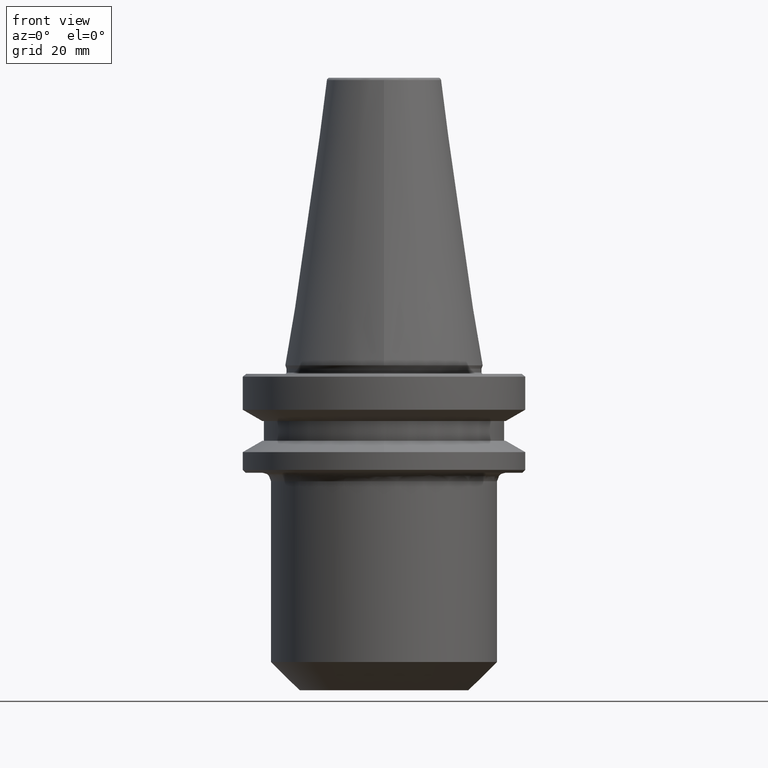
[diagram: clean part render]
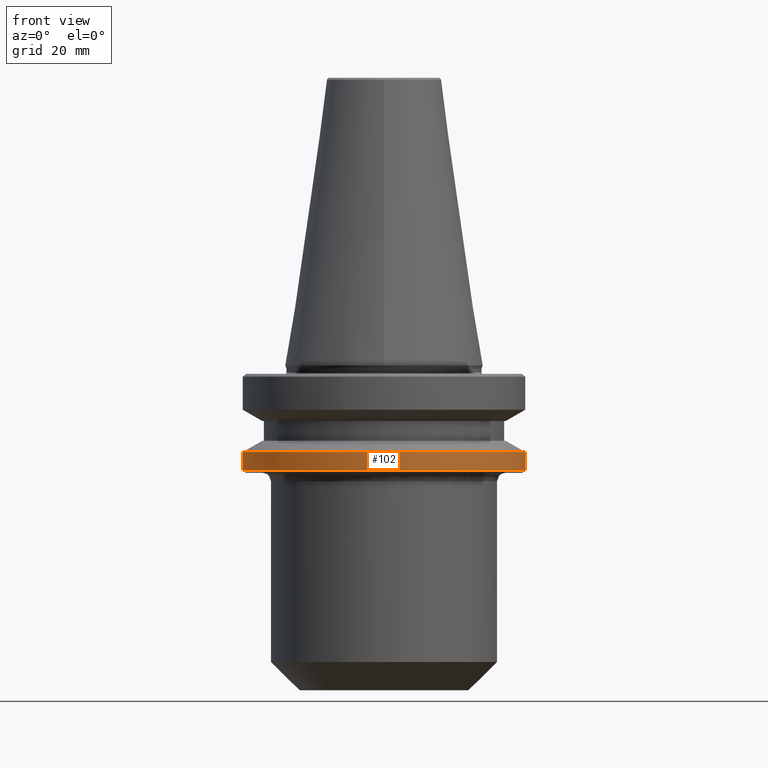
[diagram: same view with one face highlighted and labeled with its STEP entity id]
A machine part, front view. The second image highlights one B-rep face of the part: STEP entity #102.
In plain terms, the highlighted cylindrical surface (partial cylindrical patch) has radius 50 mm, axis along (0, 0, 1).
Its self-contained STEP definition (entity closure, byte-faithful):
#10 = CARTESIAN_POINT ( 'NONE',  ( -50.00000000000000000, 6.123233995736766100E-015, 124.5046326327850600 ) ) ;
#11 = DIRECTION ( 'NONE',  ( 0.0000000000000000000, 0.0000000000000000000, 1.000000000000000000 ) ) ;
#17 = AXIS2_PLACEMENT_3D ( 'NONE', #78, #883, #212 ) ;
#78 = CARTESIAN_POINT ( 'NONE',  ( 0.0000000000000000000, 0.0000000000000000000, -37.00000000000002100 ) ) ;
#102 = ADVANCED_FACE ( 'NONE', ( #407 ), #1247, .T. ) ;
#107 = LINE ( 'NONE', #978, #133 ) ;
#133 = VECTOR ( 'NONE', #977, 1000.000000000000000 ) ;
#134 = AXIS2_PLACEMENT_3D ( 'NONE', #943, #942, #1357 ) ;
#156 = EDGE_LOOP ( 'NONE', ( #1161, #1094, #1022, #658, #967 ) ) ;
#159 = VECTOR ( 'NONE', #11, 1000.000000000000000 ) ;
#212 = DIRECTION ( 'NONE',  ( 1.000000000000000000, 0.0000000000000000000, 0.0000000000000000000 ) ) ;
#271 = AXIS2_PLACEMENT_3D ( 'NONE', #1340, #1384, #1301 ) ;
#316 = CIRCLE ( 'NONE', #134, 50.00000000000000000 ) ;
#329 = VERTEX_POINT ( 'NONE', #1203 ) ;
#370 = EDGE_CURVE ( 'NONE', #478, #950, #316, .T. ) ;
#374 = CARTESIAN_POINT ( 'NONE',  ( 50.00000000000000000, 0.0000000000000000000, -30.69977999677324500 ) ) ;
#407 = FACE_OUTER_BOUND ( 'NONE', #156, .T. ) ;
#462 = CARTESIAN_POINT ( 'NONE',  ( 50.00000000000000000, 0.0000000000000000000, -37.00000000000002100 ) ) ;
#478 = VERTEX_POINT ( 'NONE', #867 ) ;
#549 = CIRCLE ( 'NONE', #1151, 50.00000000000000000 ) ;
#574 = EDGE_CURVE ( 'NONE', #329, #478, #549, .T. ) ;
#579 = EDGE_CURVE ( 'NONE', #836, #950, #107, .T. ) ;
#658 = ORIENTED_EDGE ( 'NONE', *, *, #370, .F. ) ;
#778 = CARTESIAN_POINT ( 'NONE',  ( -50.00000000000000000, 6.123233995736766100E-015, -37.00000000000002100 ) ) ;
#836 = VERTEX_POINT ( 'NONE', #462 ) ;
#867 = CARTESIAN_POINT ( 'NONE',  ( 6.123233995736766100E-015, -50.00000000000000000, -30.69977999677324500 ) ) ;
#883 = DIRECTION ( 'NONE',  ( 0.0000000000000000000, 0.0000000000000000000, 1.000000000000000000 ) ) ;
#942 = DIRECTION ( 'NONE',  ( -0.0000000000000000000, -0.0000000000000000000, 1.000000000000000000 ) ) ;
#943 = CARTESIAN_POINT ( 'NONE',  ( 0.0000000000000000000, 0.0000000000000000000, -30.69977999677324500 ) ) ;
#944 = CARTESIAN_POINT ( 'NONE',  ( 0.0000000000000000000, 0.0000000000000000000, -30.69977999677324500 ) ) ;
#950 = VERTEX_POINT ( 'NONE', #374 ) ;
#967 = ORIENTED_EDGE ( 'NONE', *, *, #574, .F. ) ;
#977 = DIRECTION ( 'NONE',  ( 0.0000000000000000000, 0.0000000000000000000, 1.000000000000000000 ) ) ;
#978 = CARTESIAN_POINT ( 'NONE',  ( 50.00000000000000000, 0.0000000000000000000, 124.5046326327850600 ) ) ;
#1022 = ORIENTED_EDGE ( 'NONE', *, *, #579, .T. ) ;
#1060 = CIRCLE ( 'NONE', #17, 50.00000000000000000 ) ;
#1072 = EDGE_CURVE ( 'NONE', #1261, #329, #1326, .T. ) ;
#1094 = ORIENTED_EDGE ( 'NONE', *, *, #1126, .T. ) ;
#1126 = EDGE_CURVE ( 'NONE', #1261, #836, #1060, .T. ) ;
#1151 = AXIS2_PLACEMENT_3D ( 'NONE', #944, #1262, #1260 ) ;
#1161 = ORIENTED_EDGE ( 'NONE', *, *, #1072, .F. ) ;
#1203 = CARTESIAN_POINT ( 'NONE',  ( -50.00000000000000000, 6.123233995736766100E-015, -30.69977999677324500 ) ) ;
#1247 = CYLINDRICAL_SURFACE ( 'NONE', #271, 50.00000000000000000 ) ;
#1260 = DIRECTION ( 'NONE',  ( -1.000000000000000000, 0.0000000000000000000, 0.0000000000000000000 ) ) ;
#1261 = VERTEX_POINT ( 'NONE', #778 ) ;
#1262 = DIRECTION ( 'NONE',  ( -0.0000000000000000000, -0.0000000000000000000, 1.000000000000000000 ) ) ;
#1301 = DIRECTION ( 'NONE',  ( 1.000000000000000000, 0.0000000000000000000, 0.0000000000000000000 ) ) ;
#1326 = LINE ( 'NONE', #10, #159 ) ;
#1340 = CARTESIAN_POINT ( 'NONE',  ( 0.0000000000000000000, 0.0000000000000000000, 124.5046326327850600 ) ) ;
#1357 = DIRECTION ( 'NONE',  ( -1.000000000000000000, 0.0000000000000000000, 0.0000000000000000000 ) ) ;
#1384 = DIRECTION ( 'NONE',  ( 0.0000000000000000000, 0.0000000000000000000, 1.000000000000000000 ) ) ;